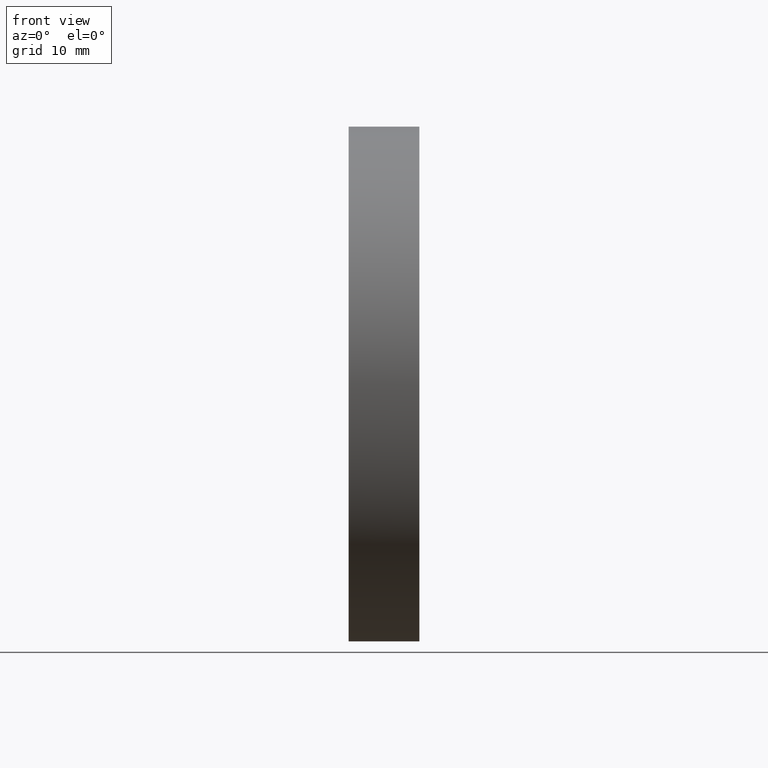
[diagram: clean part render]
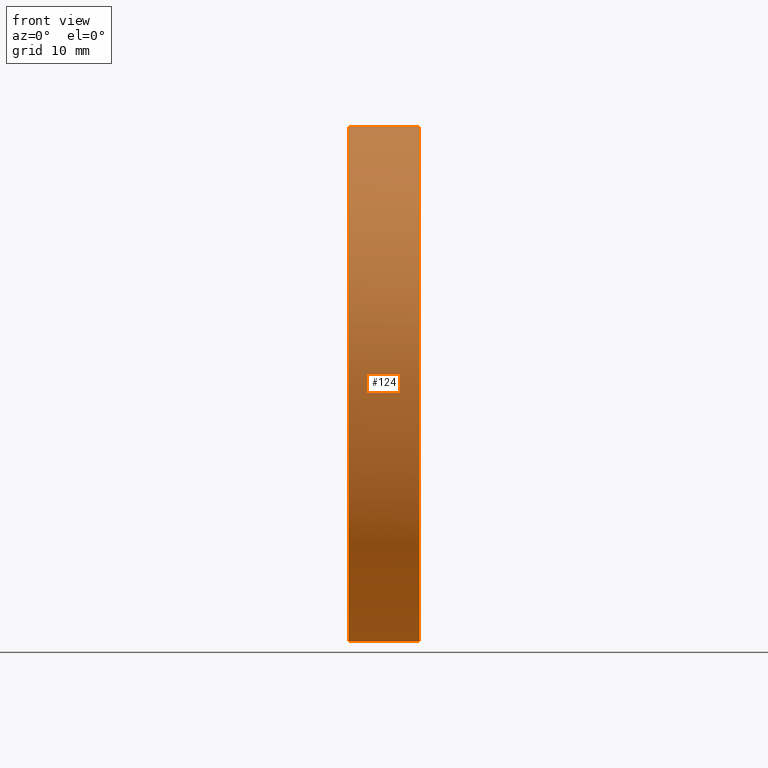
[diagram: same view with one face highlighted and labeled with its STEP entity id]
A machine part, front view. The second image highlights one B-rep face of the part: STEP entity #124.
In plain terms, the highlighted cylindrical surface (partial cylindrical patch) has radius 25 mm, axis along (-1, -0, -0).
Its self-contained STEP definition (entity closure, byte-faithful):
#2 = ORIENTED_EDGE ( 'NONE', *, *, #14, .F. ) ;
#7 = DIRECTION ( 'NONE',  ( -1.000000000000000000, -0.0000000000000000000, -0.0000000000000000000 ) ) ;
#10 = ORIENTED_EDGE ( 'NONE', *, *, #45, .F. ) ;
#14 = EDGE_CURVE ( 'NONE', #88, #55, #17, .T. ) ;
#16 = CARTESIAN_POINT ( 'NONE',  ( 113.7394371346435000, 65.15563045701519200, -24.99999999999999300 ) ) ;
#17 = LINE ( 'NONE', #110, #133 ) ;
#18 = CARTESIAN_POINT ( 'NONE',  ( 120.6125997378311500, 40.15563045701520700, -3.061616997868379500E-015 ) ) ;
#20 = VERTEX_POINT ( 'NONE', #65 ) ;
#24 = DIRECTION ( 'NONE',  ( -1.000000000000000000, -0.0000000000000000000, -0.0000000000000000000 ) ) ;
#29 = VERTEX_POINT ( 'NONE', #18 ) ;
#37 = DIRECTION ( 'NONE',  ( -1.000000000000000000, -0.0000000000000000000, -0.0000000000000000000 ) ) ;
#38 = CARTESIAN_POINT ( 'NONE',  ( 105.6218371238301200, 65.15563045701519200, 0.0000000000000000000 ) ) ;
#39 = DIRECTION ( 'NONE',  ( 0.0000000000000000000, 0.0000000000000000000, 1.000000000000000000 ) ) ;
#41 = AXIS2_PLACEMENT_3D ( 'NONE', #113, #24, #127 ) ;
#44 = VECTOR ( 'NONE', #97, 1000.000000000000000 ) ;
#45 = EDGE_CURVE ( 'NONE', #55, #160, #121, .T. ) ;
#50 = CARTESIAN_POINT ( 'NONE',  ( 113.7394371346435000, 65.15563045701519200, 24.99999999999999300 ) ) ;
#55 = VERTEX_POINT ( 'NONE', #16 ) ;
#61 = AXIS2_PLACEMENT_3D ( 'NONE', #38, #68, #39 ) ;
#65 = CARTESIAN_POINT ( 'NONE',  ( 120.6125997378311600, 65.15563045701519200, 24.99999999999998200 ) ) ;
#68 = DIRECTION ( 'NONE',  ( -1.000000000000000000, -0.0000000000000000000, -0.0000000000000000000 ) ) ;
#69 = CARTESIAN_POINT ( 'NONE',  ( 113.7394371346435000, 65.15563045701519200, 0.0000000000000000000 ) ) ;
#75 = CIRCLE ( 'NONE', #41, 24.99999999999998200 ) ;
#80 = CARTESIAN_POINT ( 'NONE',  ( 120.6125997378311600, 65.15563045701519200, -24.99999999999998200 ) ) ;
#85 = CARTESIAN_POINT ( 'NONE',  ( 120.6125997378311600, 65.15563045701519200, 0.0000000000000000000 ) ) ;
#88 = VERTEX_POINT ( 'NONE', #80 ) ;
#91 = ORIENTED_EDGE ( 'NONE', *, *, #172, .T. ) ;
#93 = CYLINDRICAL_SURFACE ( 'NONE', #61, 24.99999999999998600 ) ;
#94 = EDGE_LOOP ( 'NONE', ( #2, #91, #109, #171, #10 ) ) ;
#97 = DIRECTION ( 'NONE',  ( -1.000000000000000000, -0.0000000000000000000, -0.0000000000000000000 ) ) ;
#103 = AXIS2_PLACEMENT_3D ( 'NONE', #69, #37, #112 ) ;
#109 = ORIENTED_EDGE ( 'NONE', *, *, #143, .T. ) ;
#110 = CARTESIAN_POINT ( 'NONE',  ( 105.6218371238301200, 65.15563045701519200, -24.99999999999998600 ) ) ;
#112 = DIRECTION ( 'NONE',  ( 0.0000000000000000000, 0.0000000000000000000, 1.000000000000000000 ) ) ;
#113 = CARTESIAN_POINT ( 'NONE',  ( 120.6125997378311600, 65.15563045701519200, 0.0000000000000000000 ) ) ;
#115 = FACE_OUTER_BOUND ( 'NONE', #94, .T. ) ;
#118 = AXIS2_PLACEMENT_3D ( 'NONE', #85, #7, #180 ) ;
#119 = EDGE_CURVE ( 'NONE', #20, #160, #136, .T. ) ;
#121 = CIRCLE ( 'NONE', #103, 24.99999999999999300 ) ;
#124 = ADVANCED_FACE ( 'NONE', ( #115 ), #93, .T. ) ;
#127 = DIRECTION ( 'NONE',  ( 0.0000000000000000000, 0.0000000000000000000, 1.000000000000000000 ) ) ;
#133 = VECTOR ( 'NONE', #151, 1000.000000000000000 ) ;
#136 = LINE ( 'NONE', #184, #44 ) ;
#143 = EDGE_CURVE ( 'NONE', #29, #20, #75, .T. ) ;
#149 = CIRCLE ( 'NONE', #118, 24.99999999999998200 ) ;
#151 = DIRECTION ( 'NONE',  ( -1.000000000000000000, -0.0000000000000000000, -0.0000000000000000000 ) ) ;
#160 = VERTEX_POINT ( 'NONE', #50 ) ;
#171 = ORIENTED_EDGE ( 'NONE', *, *, #119, .T. ) ;
#172 = EDGE_CURVE ( 'NONE', #88, #29, #149, .T. ) ;
#180 = DIRECTION ( 'NONE',  ( 0.0000000000000000000, 0.0000000000000000000, 1.000000000000000000 ) ) ;
#184 = CARTESIAN_POINT ( 'NONE',  ( 105.6218371238301200, 65.15563045701519200, 24.99999999999998600 ) ) ;